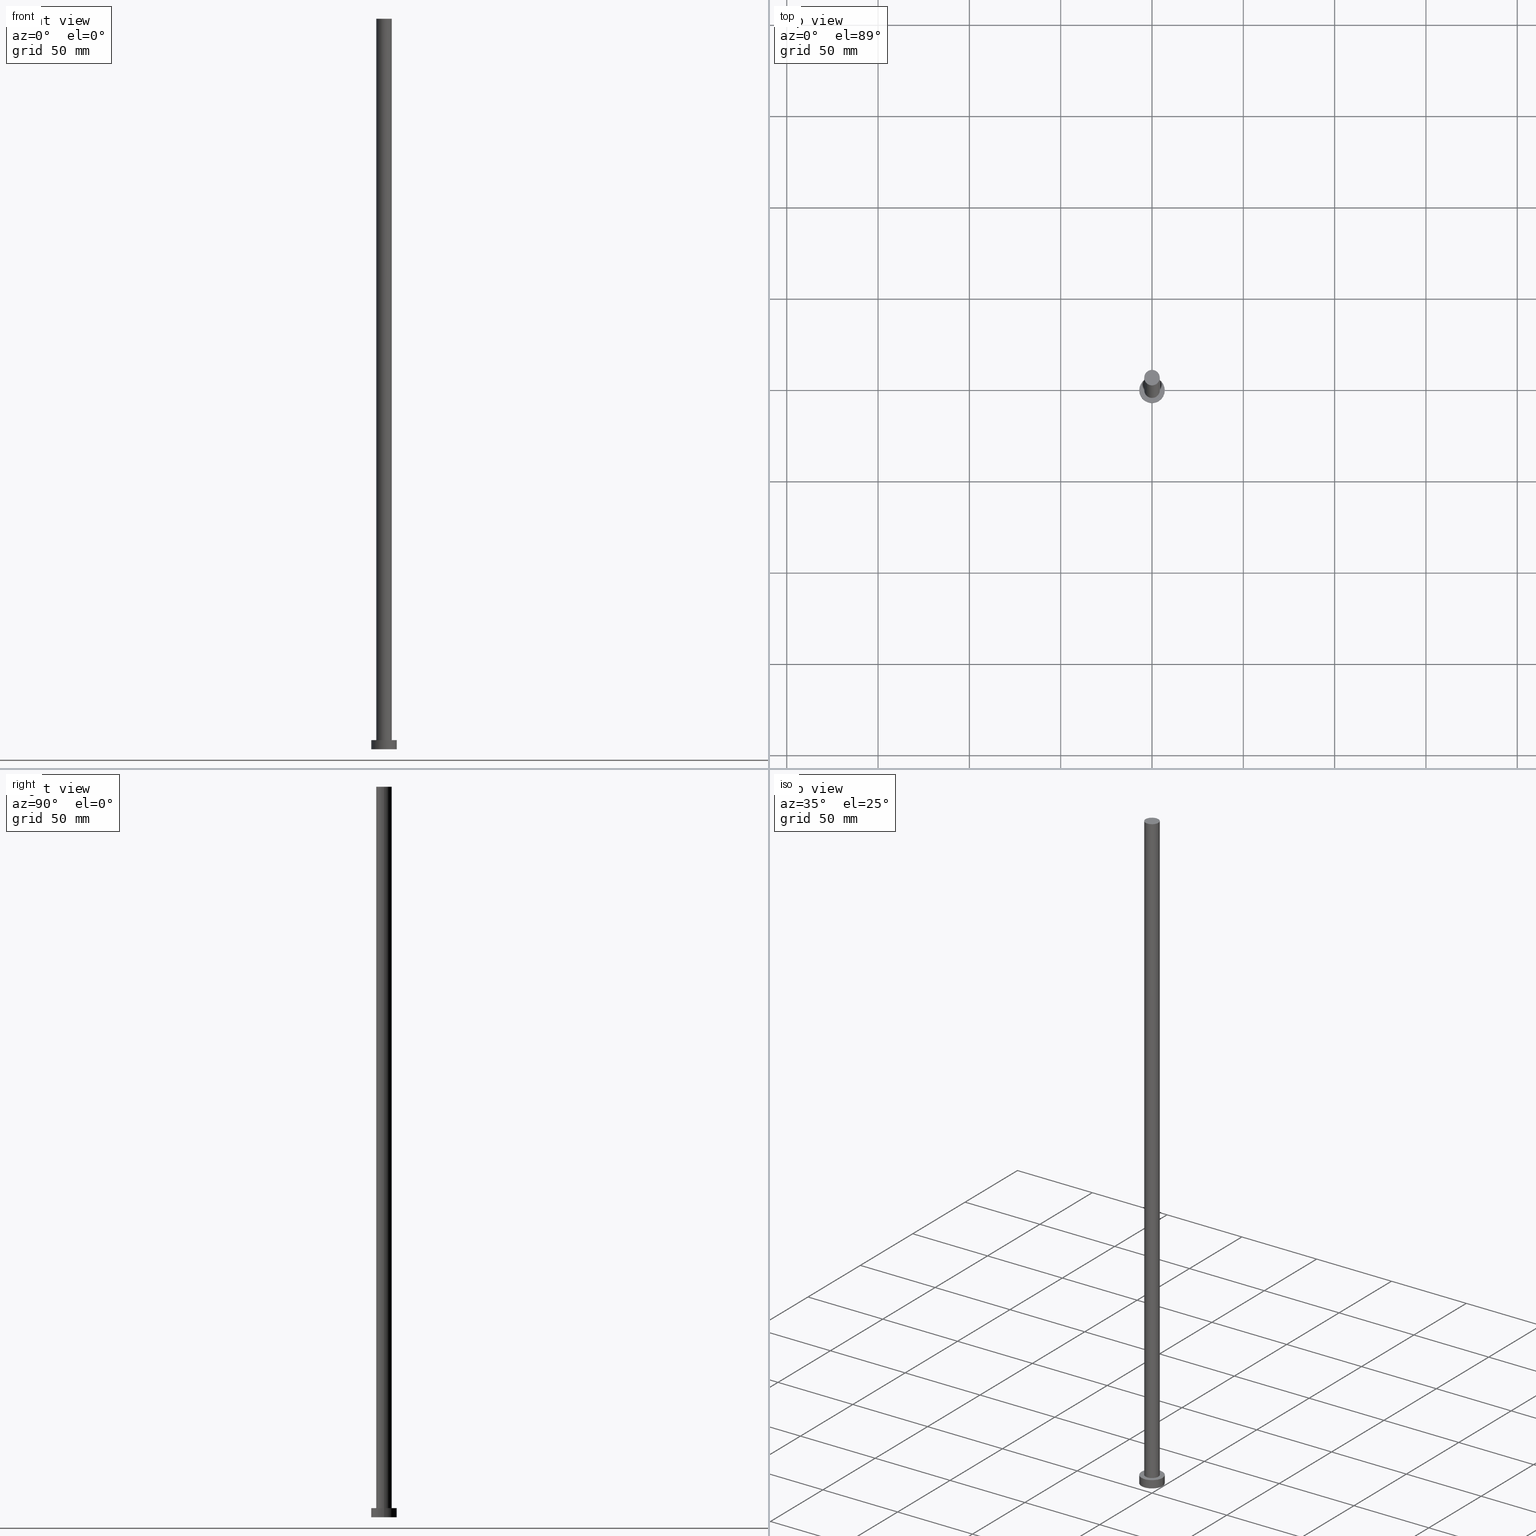
[diagram: canonical four-view strip — front | top / right | iso, engineering-drawing reading convention]
A machine part, canonical four-view strip (front | top / right | iso — engineering-drawing reading convention). The complete STEP part file that produces these views, byte-faithful:
ISO-10303-21;
HEADER;
FILE_DESCRIPTION (( 'STEP AP203' ),
    '1' );
FILE_NAME ('e13e.STEP',
    '2026-02-06T12:38:31',
    ( '' ),
    ( '' ),
    'SwSTEP 2.0',
    'SolidWorks 2019',
    '' );
FILE_SCHEMA (( 'CONFIG_CONTROL_DESIGN' ));
ENDSEC;

DATA;
#1 = APPROVAL ( #20, 'NEUR�EN�' ) ;
#2 = CARTESIAN_POINT ( 'NONE',  ( 0.000000000000000000, 0.000000000000000000, 0.000000000000000000 ) ) ;
#3 = DIRECTION ( 'NONE',  ( -1.000000000000000000, 0.000000000000000000, 0.000000000000000000 ) ) ;
#4 = EDGE_LOOP ( 'NONE', ( #84, #48, #103, #27 ) ) ;
#5 = ORIENTED_EDGE ( 'NONE', *, *, #147, .F. ) ;
#6 = VERTEX_POINT ( 'NONE', #68 ) ;
#7 = CLOSED_SHELL ( 'NONE', ( #237, #183, #150, #159, #221, #46, #192 ) ) ;
#8 = LOCAL_TIME ( 13, 38, 31.00000000000000000, #88 ) ;
#9 = EDGE_LOOP ( 'NONE', ( #180, #157, #160, #122 ) ) ;
#10 = CYLINDRICAL_SURFACE ( 'NONE', #12, 7.000000000000000000 ) ;
#11 = DIRECTION ( 'NONE',  ( -1.000000000000000000, 0.000000000000000000, 0.000000000000000000 ) ) ;
#12 = AXIS2_PLACEMENT_3D ( 'NONE', #132, #75, #249 ) ;
#13 = AXIS2_PLACEMENT_3D ( 'NONE', #26, #23, #174 ) ;
#14 = CARTESIAN_POINT ( 'NONE',  ( 0.000000000000000000, 0.000000000000000000, 5.000000000000000000 ) ) ;
#15 = CARTESIAN_POINT ( 'NONE',  ( 7.000000000000000000, 8.572527594031473190E-16, 0.000000000000000000 ) ) ;
#16 = PLANE ( 'NONE',  #29 ) ;
#17 = PERSON_AND_ORGANIZATION ( #104, #240 ) ;
#18 = VECTOR ( 'NONE', #55, 1000.000000000000000 ) ;
#19 = AXIS2_PLACEMENT_3D ( 'NONE', #245, #145, #72 ) ;
#20 = APPROVAL_STATUS ( 'not_yet_approved' ) ;
#21 = FACE_OUTER_BOUND ( 'NONE', #4, .T. ) ;
#22 = COORDINATED_UNIVERSAL_TIME_OFFSET ( 1, 0, .AHEAD. ) ;
#23 = DIRECTION ( 'NONE',  ( 0.000000000000000000, 0.000000000000000000, 1.000000000000000000 ) ) ;
#24 =( GEOMETRIC_REPRESENTATION_CONTEXT ( 3 ) GLOBAL_UNCERTAINTY_ASSIGNED_CONTEXT ( ( #215 ) ) GLOBAL_UNIT_ASSIGNED_CONTEXT ( ( #194, #135, #253 ) ) REPRESENTATION_CONTEXT ( 'NONE', 'WORKASPACE' ) );
#25 = APPROVAL_PERSON_ORGANIZATION ( #252, #31, #151 ) ;
#26 = CARTESIAN_POINT ( 'NONE',  ( 0.000000000000000000, 0.000000000000000000, 0.000000000000000000 ) ) ;
#27 = ORIENTED_EDGE ( 'NONE', *, *, #144, .F. ) ;
#28 = AXIS2_PLACEMENT_3D ( 'NONE', #209, #92, #74 ) ;
#29 = AXIS2_PLACEMENT_3D ( 'NONE', #148, #230, #61 ) ;
#30 = EDGE_LOOP ( 'NONE', ( #52, #239 ) ) ;
#31 = APPROVAL ( #134, 'NEUR�EN�' ) ;
#32 = ORIENTED_EDGE ( 'NONE', *, *, #214, .T. ) ;
#33 = VERTEX_POINT ( 'NONE', #105 ) ;
#34 = PERSON_AND_ORGANIZATION_ROLE ( 'design_owner' ) ;
#35 = VERTEX_POINT ( 'NONE', #143 ) ;
#36 = FACE_OUTER_BOUND ( 'NONE', #181, .T. ) ;
#37 = PERSON_AND_ORGANIZATION ( #104, #240 ) ;
#38 = CARTESIAN_POINT ( 'NONE',  ( 4.250000000000000000, 5.204748896376249713E-16, 5.000000000000000000 ) ) ;
#39 = CC_DESIGN_SECURITY_CLASSIFICATION ( #129, ( #85 ) ) ;
#40 = CALENDAR_DATE ( 2026, 6, 2 ) ;
#41 = DIRECTION ( 'NONE',  ( 1.000000000000000000, 0.000000000000000000, 0.000000000000000000 ) ) ;
#42 = DIRECTION ( 'NONE',  ( 0.000000000000000000, 0.000000000000000000, 1.000000000000000000 ) ) ;
#43 = CIRCLE ( 'NONE', #211, 4.250000000000000000 ) ;
#44 = CC_DESIGN_DATE_AND_TIME_ASSIGNMENT ( #62, #45, ( #129 ) ) ;
#45 = DATE_TIME_ROLE ( 'classification_date' ) ;
#46 = ADVANCED_FACE ( 'NONE', ( #140 ), #201, .T. ) ;
#47 = APPROVAL_PERSON_ORGANIZATION ( #107, #97, #73 ) ;
#48 = ORIENTED_EDGE ( 'NONE', *, *, #91, .T. ) ;
#49 = EDGE_CURVE ( 'NONE', #65, #6, #254, .T. ) ;
#50 = ORIENTED_EDGE ( 'NONE', *, *, #81, .T. ) ;
#51 = CC_DESIGN_DATE_AND_TIME_ASSIGNMENT ( #163, #96, ( #136 ) ) ;
#52 = ORIENTED_EDGE ( 'NONE', *, *, #119, .F. ) ;
#53 = CIRCLE ( 'NONE', #139, 4.250000000000000000 ) ;
#54 = CARTESIAN_POINT ( 'NONE',  ( -4.250000000000000000, 0.000000000000000000, 400.0000000000000000 ) ) ;
#55 = DIRECTION ( 'NONE',  ( -0.000000000000000000, -0.000000000000000000, -1.000000000000000000 ) ) ;
#56 = DIRECTION ( 'NONE',  ( -0.000000000000000000, -0.000000000000000000, -1.000000000000000000 ) ) ;
#57 = APPLICATION_PROTOCOL_DEFINITION ( 'international standard', 'config_control_design', 1994, #83 ) ;
#58 = AXIS2_PLACEMENT_3D ( 'NONE', #14, #247, #184 ) ;
#59 = AXIS2_PLACEMENT_3D ( 'NONE', #2, #217, #223 ) ;
#60 = CARTESIAN_POINT ( 'NONE',  ( -7.000000000000000000, 0.000000000000000000, 0.000000000000000000 ) ) ;
#61 = DIRECTION ( 'NONE',  ( 1.000000000000000000, 0.000000000000000000, -0.000000000000000000 ) ) ;
#62 = DATE_AND_TIME ( #234, #141 ) ;
#63 = EDGE_CURVE ( 'NONE', #33, #69, #189, .T. ) ;
#64 = PRODUCT_DEFINITION_SHAPE ( 'NONE', 'NONE',  #136 ) ;
#65 = VERTEX_POINT ( 'NONE', #38 ) ;
#66 = ORIENTED_EDGE ( 'NONE', *, *, #204, .T. ) ;
#67 = LOCAL_TIME ( 13, 38, 31.00000000000000000, #248 ) ;
#68 = CARTESIAN_POINT ( 'NONE',  ( -4.250000000000000000, 0.000000000000000000, 5.000000000000000000 ) ) ;
#69 = VERTEX_POINT ( 'NONE', #60 ) ;
#70 = FACE_OUTER_BOUND ( 'NONE', #200, .T. ) ;
#71 = FACE_OUTER_BOUND ( 'NONE', #9, .T. ) ;
#72 = DIRECTION ( 'NONE',  ( 1.000000000000000000, 0.000000000000000000, 0.000000000000000000 ) ) ;
#73 = APPROVAL_ROLE ( '' ) ;
#74 = DIRECTION ( 'NONE',  ( 1.000000000000000000, 0.000000000000000000, 0.000000000000000000 ) ) ;
#75 = DIRECTION ( 'NONE',  ( -0.000000000000000000, -0.000000000000000000, -1.000000000000000000 ) ) ;
#76 = EDGE_CURVE ( 'NONE', #33, #82, #178, .T. ) ;
#77 = DATE_AND_TIME ( #251, #161 ) ;
#78 = APPLICATION_CONTEXT ( 'configuration controlled 3d designs of mechanical parts and assemblies' ) ;
#79 = FACE_OUTER_BOUND ( 'NONE', #30, .T. ) ;
#80 = PERSON_AND_ORGANIZATION ( #104, #240 ) ;
#81 = EDGE_CURVE ( 'NONE', #6, #65, #43, .T. ) ;
#82 = VERTEX_POINT ( 'NONE', #203 ) ;
#83 = APPLICATION_CONTEXT ( 'configuration controlled 3d designs of mechanical parts and assemblies' ) ;
#84 = ORIENTED_EDGE ( 'NONE', *, *, #204, .F. ) ;
#85 = PRODUCT_DEFINITION_FORMATION_WITH_SPECIFIED_SOURCE ( 'LIBOVOLN�', '', #188, .NOT_KNOWN. ) ;
#86 = ORIENTED_EDGE ( 'NONE', *, *, #76, .T. ) ;
#87 = DIRECTION ( 'NONE',  ( 0.000000000000000000, 0.000000000000000000, 1.000000000000000000 ) ) ;
#88 = COORDINATED_UNIVERSAL_TIME_OFFSET ( 1, 0, .AHEAD. ) ;
#89 = DESIGN_CONTEXT ( 'detailed design', #78, 'design' ) ;
#90 = DIRECTION ( 'NONE',  ( 1.000000000000000000, 0.000000000000000000, 0.000000000000000000 ) ) ;
#91 = EDGE_CURVE ( 'NONE', #218, #65, #130, .T. ) ;
#92 = DIRECTION ( 'NONE',  ( 0.000000000000000000, 0.000000000000000000, 1.000000000000000000 ) ) ;
#93 = CYLINDRICAL_SURFACE ( 'NONE', #236, 7.000000000000000000 ) ;
#94 = APPROVAL_DATE_TIME ( #111, #97 ) ;
#95 = DIRECTION ( 'NONE',  ( 1.000000000000000000, 0.000000000000000000, 0.000000000000000000 ) ) ;
#96 = DATE_TIME_ROLE ( 'creation_date' ) ;
#97 = APPROVAL ( #186, 'NEUR�EN�' ) ;
#98 = DIRECTION ( 'NONE',  ( -0.000000000000000000, -0.000000000000000000, -1.000000000000000000 ) ) ;
#99 = APPROVAL_ROLE ( '' ) ;
#100 = AXIS2_PLACEMENT_3D ( 'NONE', #114, #98, #231 ) ;
#101 = CIRCLE ( 'NONE', #28, 7.000000000000000000 ) ;
#102 = ORIENTED_EDGE ( 'NONE', *, *, #49, .F. ) ;
#103 = ORIENTED_EDGE ( 'NONE', *, *, #49, .T. ) ;
#104 = PERSON ( 'NEUR�EN�', 'NEUR�EN�', 'NEUR�EN�', ('NEUR�EN�'), ('NEUR�EN�'), ('NEUR�EN�') ) ;
#105 = CARTESIAN_POINT ( 'NONE',  ( -7.000000000000000000, 0.000000000000000000, 5.000000000000000000 ) ) ;
#106 = DIRECTION ( 'NONE',  ( -0.000000000000000000, -0.000000000000000000, -1.000000000000000000 ) ) ;
#107 = PERSON_AND_ORGANIZATION ( #104, #240 ) ;
#108 = CC_DESIGN_PERSON_AND_ORGANIZATION_ASSIGNMENT ( #165, #172, ( #136 ) ) ;
#109 = CARTESIAN_POINT ( 'NONE',  ( 0.000000000000000000, 0.000000000000000000, 5.000000000000000000 ) ) ;
#110 = CARTESIAN_POINT ( 'NONE',  ( 0.000000000000000000, 0.000000000000000000, 5.000000000000000000 ) ) ;
#111 = DATE_AND_TIME ( #40, #8 ) ;
#112 = DIRECTION ( 'NONE',  ( -0.000000000000000000, -0.000000000000000000, -1.000000000000000000 ) ) ;
#113 = COORDINATED_UNIVERSAL_TIME_OFFSET ( 1, 0, .AHEAD. ) ;
#114 = CARTESIAN_POINT ( 'NONE',  ( 0.000000000000000000, 0.000000000000000000, 400.0000000000000000 ) ) ;
#115 = CC_DESIGN_PERSON_AND_ORGANIZATION_ASSIGNMENT ( #80, #155, ( #85 ) ) ;
#116 = APPROVAL_DATE_TIME ( #233, #31 ) ;
#117 = PLANE ( 'NONE',  #13 ) ;
#118 = CC_DESIGN_APPROVAL ( #31, ( #129 ) ) ;
#119 = EDGE_CURVE ( 'NONE', #69, #182, #101, .T. ) ;
#120 = EDGE_LOOP ( 'NONE', ( #137, #66 ) ) ;
#121 = CC_DESIGN_PERSON_AND_ORGANIZATION_ASSIGNMENT ( #153, #195, ( #129 ) ) ;
#122 = ORIENTED_EDGE ( 'NONE', *, *, #119, .T. ) ;
#123 = ORIENTED_EDGE ( 'NONE', *, *, #81, .F. ) ;
#124 = ORIENTED_EDGE ( 'NONE', *, *, #198, .T. ) ;
#125 = AXIS2_PLACEMENT_3D ( 'NONE', #220, #142, #3 ) ;
#126 = DIRECTION ( 'NONE',  ( 0.000000000000000000, 0.000000000000000000, 1.000000000000000000 ) ) ;
#127 = CARTESIAN_POINT ( 'NONE',  ( 0.000000000000000000, 0.000000000000000000, 5.000000000000000000 ) ) ;
#128 = DIRECTION ( 'NONE',  ( 1.000000000000000000, 0.000000000000000000, 0.000000000000000000 ) ) ;
#129 = SECURITY_CLASSIFICATION ( '', '', #235 ) ;
#130 = LINE ( 'NONE', #227, #133 ) ;
#131 = ADVANCED_BREP_SHAPE_REPRESENTATION ( 'e13e', ( #173, #59 ), #24 ) ;
#132 = CARTESIAN_POINT ( 'NONE',  ( 0.000000000000000000, 0.000000000000000000, 5.000000000000000000 ) ) ;
#133 = VECTOR ( 'NONE', #106, 1000.000000000000000 ) ;
#134 = APPROVAL_STATUS ( 'not_yet_approved' ) ;
#135 =( NAMED_UNIT ( * ) PLANE_ANGLE_UNIT ( ) SI_UNIT ( $, .RADIAN. ) );
#136 = PRODUCT_DEFINITION ( 'NEZN�M�', '', #85, #89 ) ;
#137 = ORIENTED_EDGE ( 'NONE', *, *, #147, .T. ) ;
#138 = EDGE_LOOP ( 'NONE', ( #241, #5, #219, #50 ) ) ;
#139 = AXIS2_PLACEMENT_3D ( 'NONE', #222, #126, #90 ) ;
#140 = FACE_OUTER_BOUND ( 'NONE', #138, .T. ) ;
#141 = LOCAL_TIME ( 13, 38, 31.00000000000000000, #22 ) ;
#142 = DIRECTION ( 'NONE',  ( -0.000000000000000000, -0.000000000000000000, -1.000000000000000000 ) ) ;
#143 = CARTESIAN_POINT ( 'NONE',  ( -4.250000000000000000, 0.000000000000000000, 400.0000000000000000 ) ) ;
#144 = EDGE_CURVE ( 'NONE', #35, #6, #226, .T. ) ;
#145 = DIRECTION ( 'NONE',  ( 0.000000000000000000, 0.000000000000000000, 1.000000000000000000 ) ) ;
#146 = DIRECTION ( 'NONE',  ( 1.000000000000000000, 0.000000000000000000, 0.000000000000000000 ) ) ;
#147 = EDGE_CURVE ( 'NONE', #35, #218, #196, .T. ) ;
#148 = CARTESIAN_POINT ( 'NONE',  ( 0.000000000000000000, 0.000000000000000000, 400.0000000000000000 ) ) ;
#149 = FACE_OUTER_BOUND ( 'NONE', #120, .T. ) ;
#150 = ADVANCED_FACE ( 'NONE', ( #71 ), #10, .T. ) ;
#151 = APPROVAL_ROLE ( '' ) ;
#152 = AXIS2_PLACEMENT_3D ( 'NONE', #109, #87, #205 ) ;
#153 = PERSON_AND_ORGANIZATION ( #104, #240 ) ;
#154 = CARTESIAN_POINT ( 'NONE',  ( 4.250000000000000000, 5.204748896376249713E-16, 400.0000000000000000 ) ) ;
#155 = PERSON_AND_ORGANIZATION_ROLE ( 'creator' ) ;
#156 = EDGE_CURVE ( 'NONE', #82, #182, #166, .T. ) ;
#157 = ORIENTED_EDGE ( 'NONE', *, *, #76, .F. ) ;
#158 = ORIENTED_EDGE ( 'NONE', *, *, #63, .F. ) ;
#159 = ADVANCED_FACE ( 'NONE', ( #185, #70 ), #244, .T. ) ;
#160 = ORIENTED_EDGE ( 'NONE', *, *, #63, .T. ) ;
#161 = LOCAL_TIME ( 13, 38, 31.00000000000000000, #250 ) ;
#162 = ORIENTED_EDGE ( 'NONE', *, *, #156, .T. ) ;
#163 = DATE_AND_TIME ( #229, #67 ) ;
#164 = DIRECTION ( 'NONE',  ( 0.000000000000000000, 0.000000000000000000, 1.000000000000000000 ) ) ;
#165 = PERSON_AND_ORGANIZATION ( #104, #240 ) ;
#166 = LINE ( 'NONE', #242, #232 ) ;
#167 = VECTOR ( 'NONE', #56, 1000.000000000000000 ) ;
#168 = CIRCLE ( 'NONE', #19, 7.000000000000000000 ) ;
#169 = CARTESIAN_POINT ( 'NONE',  ( 0.000000000000000000, 0.000000000000000000, 5.000000000000000000 ) ) ;
#170 = CC_DESIGN_PERSON_AND_ORGANIZATION_ASSIGNMENT ( #37, #34, ( #188 ) ) ;
#171 = CARTESIAN_POINT ( 'NONE',  ( 0.000000000000000000, 0.000000000000000000, 5.000000000000000000 ) ) ;
#172 = PERSON_AND_ORGANIZATION_ROLE ( 'creator' ) ;
#173 = MANIFOLD_SOLID_BREP ( 'P�idat vysunut�m3', #7 ) ;
#174 = DIRECTION ( 'NONE',  ( 1.000000000000000000, 0.000000000000000000, -0.000000000000000000 ) ) ;
#175 = SHAPE_DEFINITION_REPRESENTATION ( #64, #131 ) ;
#176 = PRODUCT_RELATED_PRODUCT_CATEGORY ( 'detail', '', ( #188 ) ) ;
#177 = APPROVAL_DATE_TIME ( #77, #1 ) ;
#178 = CIRCLE ( 'NONE', #191, 7.000000000000000000 ) ;
#179 = APPROVAL_PERSON_ORGANIZATION ( #17, #1, #99 ) ;
#180 = ORIENTED_EDGE ( 'NONE', *, *, #156, .F. ) ;
#181 = EDGE_LOOP ( 'NONE', ( #238, #162, #124, #158 ) ) ;
#182 = VERTEX_POINT ( 'NONE', #15 ) ;
#183 = ADVANCED_FACE ( 'NONE', ( #36 ), #93, .T. ) ;
#184 = DIRECTION ( 'NONE',  ( 1.000000000000000000, 0.000000000000000000, 0.000000000000000000 ) ) ;
#185 = FACE_BOUND ( 'NONE', #199, .T. ) ;
#186 = APPROVAL_STATUS ( 'not_yet_approved' ) ;
#187 = CARTESIAN_POINT ( 'NONE',  ( -7.000000000000000000, 0.000000000000000000, 5.000000000000000000 ) ) ;
#188 = PRODUCT ( 'e13e', 'e13e', '', ( #246 ) ) ;
#189 = LINE ( 'NONE', #187, #18 ) ;
#190 = DIRECTION ( 'NONE',  ( 0.000000000000000000, 0.000000000000000000, 1.000000000000000000 ) ) ;
#191 = AXIS2_PLACEMENT_3D ( 'NONE', #110, #164, #41 ) ;
#192 = ADVANCED_FACE ( 'NONE', ( #149 ), #16, .T. ) ;
#193 = CYLINDRICAL_SURFACE ( 'NONE', #100, 4.250000000000000000 ) ;
#194 =( LENGTH_UNIT ( ) NAMED_UNIT ( * ) SI_UNIT ( .MILLI., .METRE. ) );
#195 = PERSON_AND_ORGANIZATION_ROLE ( 'classification_officer' ) ;
#196 = CIRCLE ( 'NONE', #206, 4.250000000000000000 ) ;
#197 = CC_DESIGN_APPROVAL ( #97, ( #136 ) ) ;
#198 = EDGE_CURVE ( 'NONE', #182, #69, #168, .T. ) ;
#199 = EDGE_LOOP ( 'NONE', ( #123, #102 ) ) ;
#200 = EDGE_LOOP ( 'NONE', ( #86, #32 ) ) ;
#201 = CYLINDRICAL_SURFACE ( 'NONE', #125, 4.250000000000000000 ) ;
#202 = DIRECTION ( 'NONE',  ( -0.000000000000000000, -0.000000000000000000, -1.000000000000000000 ) ) ;
#203 = CARTESIAN_POINT ( 'NONE',  ( 7.000000000000000000, 8.572527594031473190E-16, 5.000000000000000000 ) ) ;
#204 = EDGE_CURVE ( 'NONE', #218, #35, #53, .T. ) ;
#205 = DIRECTION ( 'NONE',  ( 1.000000000000000000, 0.000000000000000000, -0.000000000000000000 ) ) ;
#206 = AXIS2_PLACEMENT_3D ( 'NONE', #210, #42, #128 ) ;
#207 = CC_DESIGN_APPROVAL ( #1, ( #85 ) ) ;
#208 = APPLICATION_PROTOCOL_DEFINITION ( 'international standard', 'config_control_design', 1994, #78 ) ;
#209 = CARTESIAN_POINT ( 'NONE',  ( 0.000000000000000000, 0.000000000000000000, 0.000000000000000000 ) ) ;
#210 = CARTESIAN_POINT ( 'NONE',  ( 0.000000000000000000, 0.000000000000000000, 400.0000000000000000 ) ) ;
#211 = AXIS2_PLACEMENT_3D ( 'NONE', #127, #190, #95 ) ;
#212 = CIRCLE ( 'NONE', #243, 7.000000000000000000 ) ;
#213 = PERSON_AND_ORGANIZATION_ROLE ( 'design_supplier' ) ;
#214 = EDGE_CURVE ( 'NONE', #82, #33, #212, .T. ) ;
#215 = UNCERTAINTY_MEASURE_WITH_UNIT (LENGTH_MEASURE( 1.000000000000000082E-05 ), #194, 'distance_accuracy_value', 'NONE');
#216 = CALENDAR_DATE ( 2026, 6, 2 ) ;
#217 = DIRECTION ( 'NONE',  ( 0.000000000000000000, 0.000000000000000000, 1.000000000000000000 ) ) ;
#218 = VERTEX_POINT ( 'NONE', #154 ) ;
#219 = ORIENTED_EDGE ( 'NONE', *, *, #144, .T. ) ;
#220 = CARTESIAN_POINT ( 'NONE',  ( 0.000000000000000000, 0.000000000000000000, 400.0000000000000000 ) ) ;
#221 = ADVANCED_FACE ( 'NONE', ( #79 ), #117, .F. ) ;
#222 = CARTESIAN_POINT ( 'NONE',  ( 0.000000000000000000, 0.000000000000000000, 400.0000000000000000 ) ) ;
#223 = DIRECTION ( 'NONE',  ( 1.000000000000000000, 0.000000000000000000, 0.000000000000000000 ) ) ;
#224 = DIRECTION ( 'NONE',  ( 0.000000000000000000, 0.000000000000000000, 1.000000000000000000 ) ) ;
#225 = CC_DESIGN_PERSON_AND_ORGANIZATION_ASSIGNMENT ( #255, #213, ( #85 ) ) ;
#226 = LINE ( 'NONE', #54, #167 ) ;
#227 = CARTESIAN_POINT ( 'NONE',  ( 4.250000000000000000, 5.204748896376249713E-16, 400.0000000000000000 ) ) ;
#228 = LOCAL_TIME ( 13, 38, 31.00000000000000000, #113 ) ;
#229 = CALENDAR_DATE ( 2026, 6, 2 ) ;
#230 = DIRECTION ( 'NONE',  ( 0.000000000000000000, 0.000000000000000000, 1.000000000000000000 ) ) ;
#231 = DIRECTION ( 'NONE',  ( -1.000000000000000000, 0.000000000000000000, 0.000000000000000000 ) ) ;
#232 = VECTOR ( 'NONE', #112, 1000.000000000000000 ) ;
#233 = DATE_AND_TIME ( #216, #228 ) ;
#234 = CALENDAR_DATE ( 2026, 6, 2 ) ;
#235 = SECURITY_CLASSIFICATION_LEVEL ( 'unclassified' ) ;
#236 = AXIS2_PLACEMENT_3D ( 'NONE', #169, #202, #11 ) ;
#237 = ADVANCED_FACE ( 'NONE', ( #21 ), #193, .T. ) ;
#238 = ORIENTED_EDGE ( 'NONE', *, *, #214, .F. ) ;
#239 = ORIENTED_EDGE ( 'NONE', *, *, #198, .F. ) ;
#240 = ORGANIZATION ( 'NEUR�EN�', 'NEUR�EN�', '' ) ;
#241 = ORIENTED_EDGE ( 'NONE', *, *, #91, .F. ) ;
#242 = CARTESIAN_POINT ( 'NONE',  ( 7.000000000000000000, 8.572527594031473190E-16, 5.000000000000000000 ) ) ;
#243 = AXIS2_PLACEMENT_3D ( 'NONE', #171, #224, #146 ) ;
#244 = PLANE ( 'NONE',  #152 ) ;
#245 = CARTESIAN_POINT ( 'NONE',  ( 0.000000000000000000, 0.000000000000000000, 0.000000000000000000 ) ) ;
#246 = MECHANICAL_CONTEXT ( 'NONE', #83, 'mechanical' ) ;
#247 = DIRECTION ( 'NONE',  ( 0.000000000000000000, 0.000000000000000000, 1.000000000000000000 ) ) ;
#248 = COORDINATED_UNIVERSAL_TIME_OFFSET ( 1, 0, .AHEAD. ) ;
#249 = DIRECTION ( 'NONE',  ( -1.000000000000000000, 0.000000000000000000, 0.000000000000000000 ) ) ;
#250 = COORDINATED_UNIVERSAL_TIME_OFFSET ( 1, 0, .AHEAD. ) ;
#251 = CALENDAR_DATE ( 2026, 6, 2 ) ;
#252 = PERSON_AND_ORGANIZATION ( #104, #240 ) ;
#253 =( NAMED_UNIT ( * ) SI_UNIT ( $, .STERADIAN. ) SOLID_ANGLE_UNIT ( ) );
#254 = CIRCLE ( 'NONE', #58, 4.250000000000000000 ) ;
#255 = PERSON_AND_ORGANIZATION ( #104, #240 ) ;
ENDSEC;
END-ISO-10303-21;
